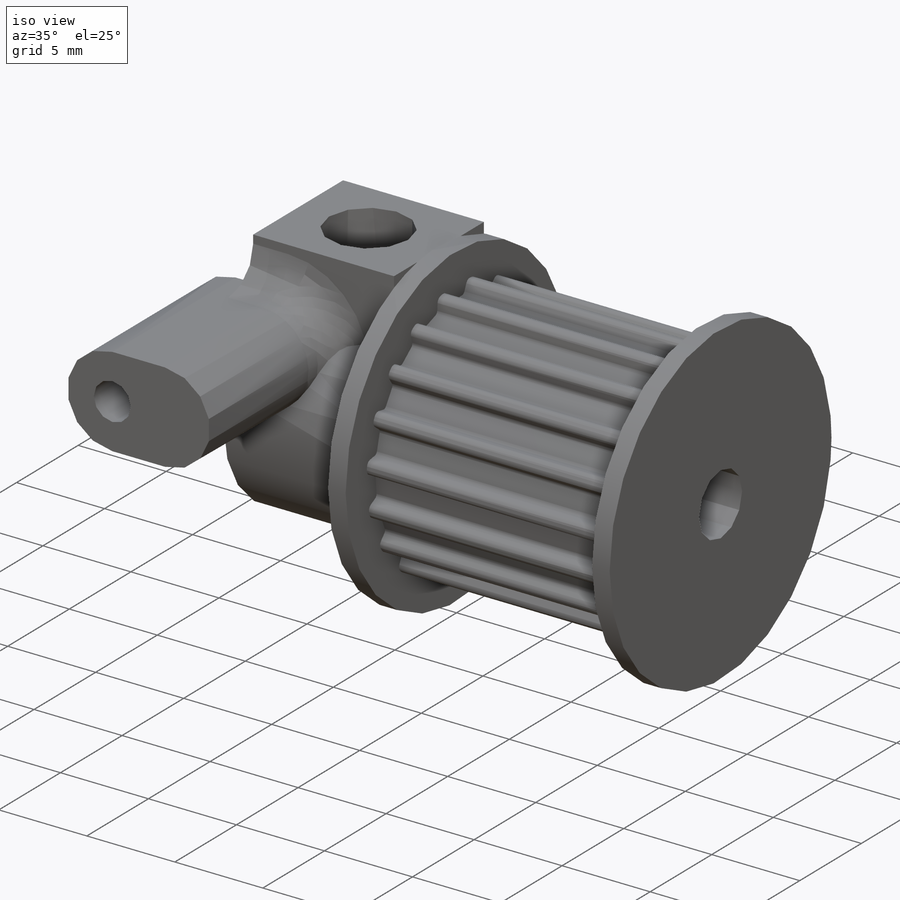
[diagram: iso view]
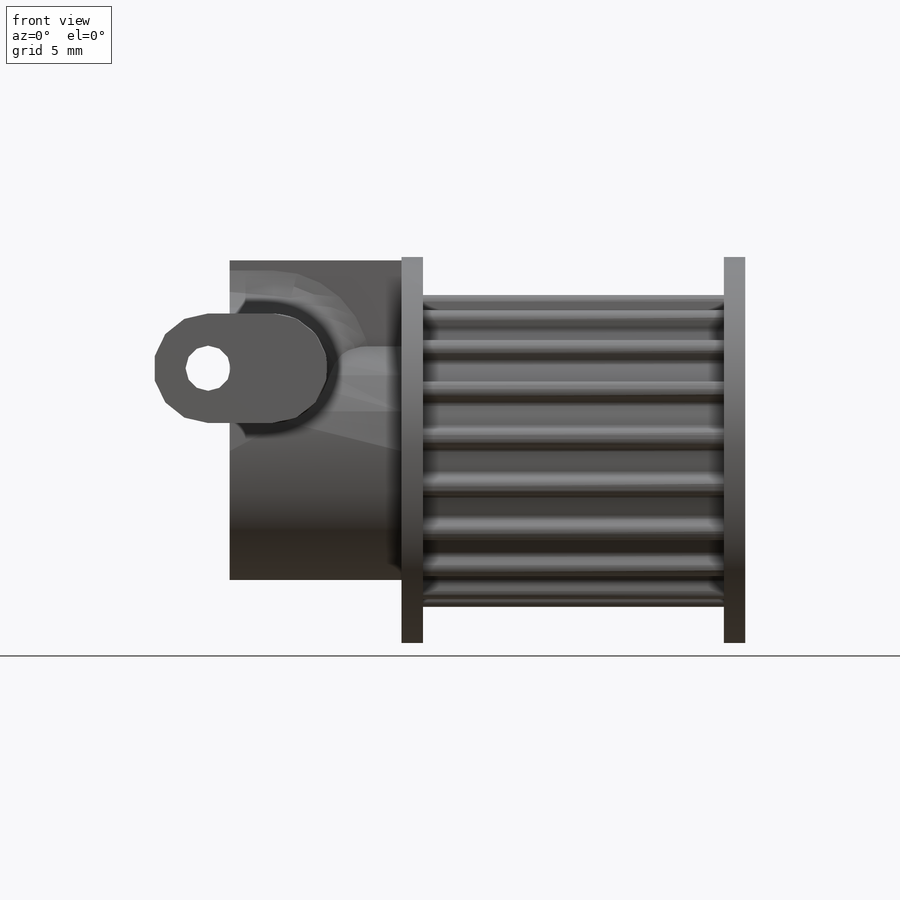
[diagram: front view]
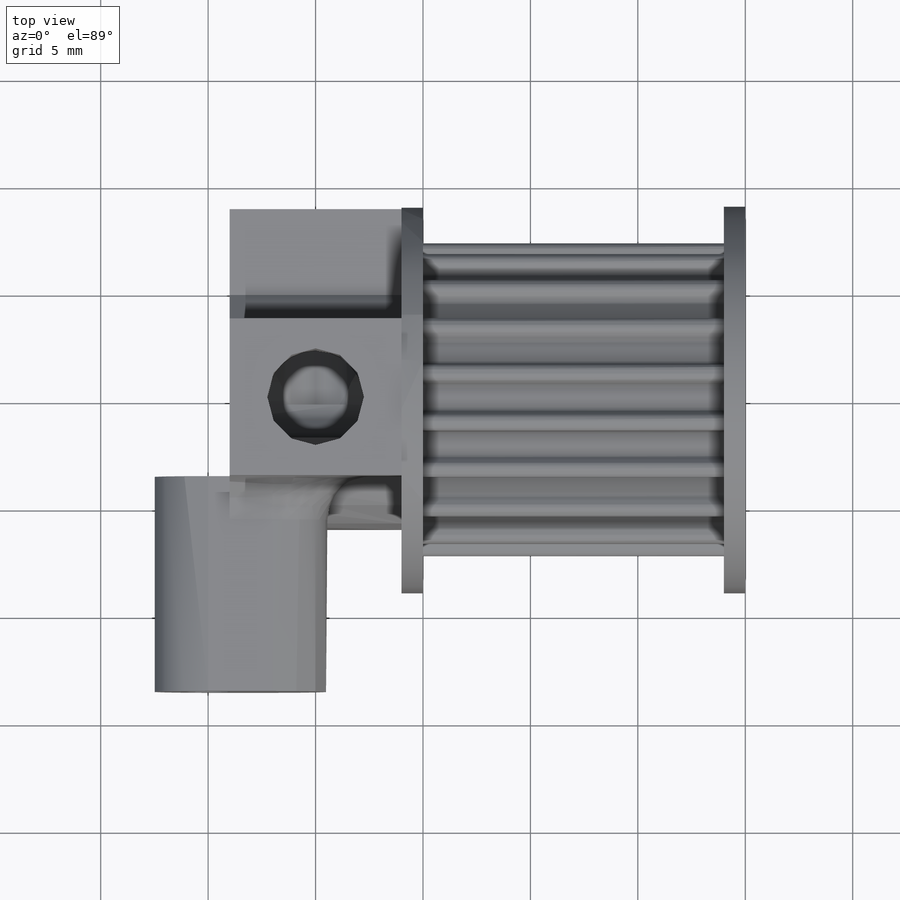
[diagram: top view]
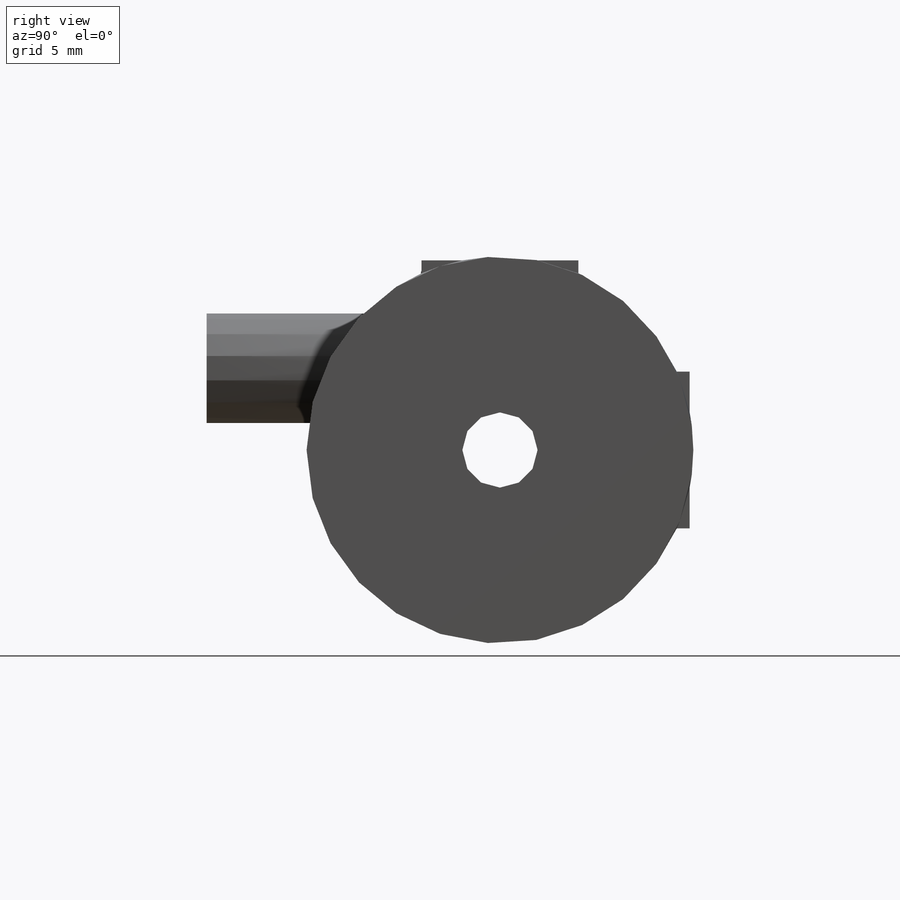
[diagram: right view]
SOLIDWORKS PART (.sldprt)
format: sldprt  version: not decoded by parser v0  size: 624,640 bytes
history: native  units: mm
features: sketch x10, extrude x7, cut_extrude x3, material x1, pattern_circular x1, fillet x1 (+13 scaffold rows collapsed)
feature tree (36):
  scaffold x13  (default folders/planes/origin — collapsed)
  material  "PLA Black"
  sketch  "Sketch1"  dims[c1.D1=3.0mm c1.D3=1.5mm c1.D5=6.05mm c1.D2=1.0mm c2.D3=0.25mm c2.D4=7.3mm c2.D5=3.5mm]
  extrude  "Boss-Extrude1"  Depth=8mm
  sketch  "Sketch2"  dims[D1=4.5mm]
  cut_extrude  "Cut-Extrude1"  Depth=5mm
  sketch  "Sketch7"  dims[D1=14.6mm]
  extrude  "Boss-Extrude5"  Depth=15mm
  sketch  "Sketch8"
  cut_extrude  "Cut-Extrude3"  [1 undecoded]
  pattern_circular  "CirPattern1"  Count=19 Angle=18.947368deg
  sketch  "Sketch9"  dims[D1=7.3mm]
  extrude  "Boss-Extrude6"  Depth=1mm
  sketch  "Sketch10"
  extrude  "Boss-Extrude7"  Depth=1mm
  sketch  "Sketch3"  dims[D1=4.5mm]
  cut_extrude  "Cut-Extrude2"  Depth=5mm
  sketch  "Sketch4"
  extrude  "Boss-Extrude2"  Depth=4mm
  sketch  "Sketch5"
  extrude  "Boss-Extrude3"  Depth=4mm
  sketch  "Sketch6"  dims[c1.D1=2.101mm c1.D2=~2.255826mm c1.D3=~2.619929mm c1.D4=1.0mm c2.D2=3.805mm c2.D3=1.5mm c2.D4=1.0mm c2.D5=3.0mm]
  extrude  "Boss-Extrude4"  Depth=10mm
  fillet  "Fillet1"  Radius=2mm
decode coverage: 17 of 22 modeling features carry decoded parameters
note: ~ marks probable driven/reference dimensions
note: 1 parameter value undecoded
note: suppression state not decoded; provenance and decode notes live in map.json
